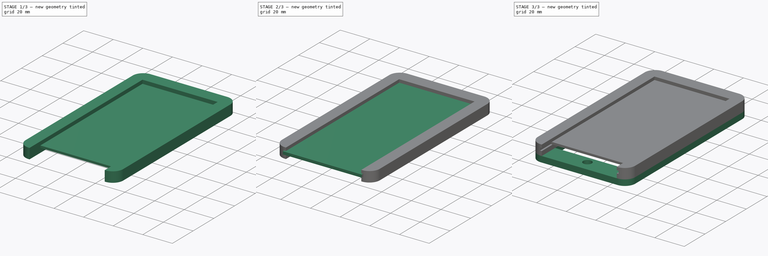
[diagram: build sequence overview — one tinted view per stage of 3, left to right]
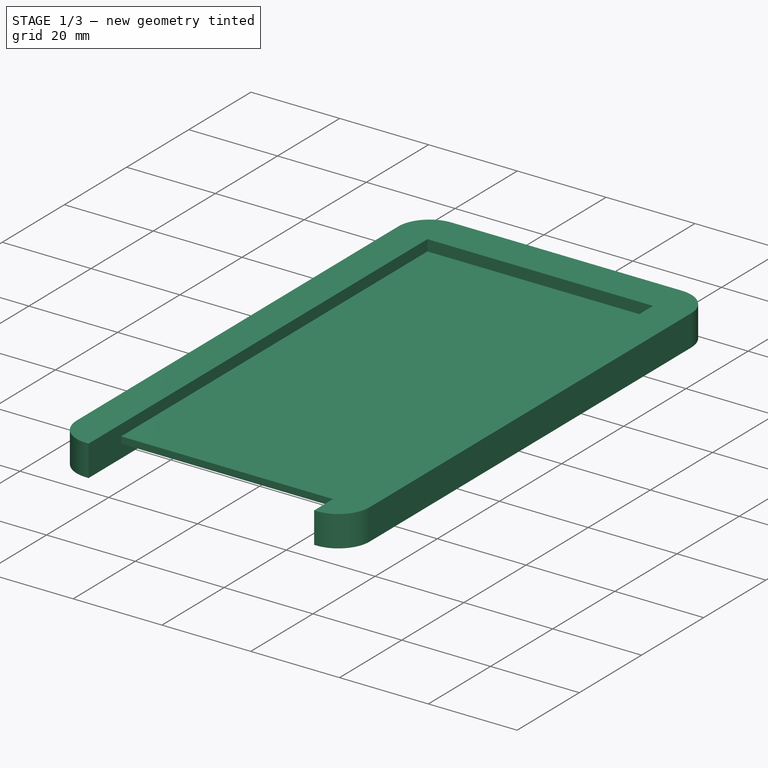
[diagram: stage 1 of 3 — iso view after this stage's code; geometry added in this stage tinted green]
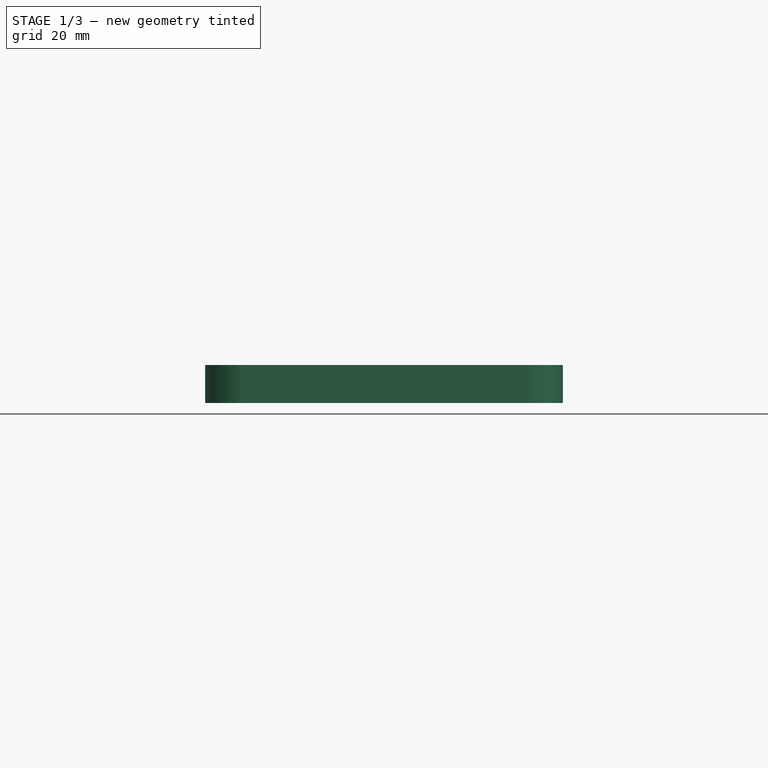
[diagram: stage 1 of 3 — front view after this stage's code; geometry added in this stage tinted green]
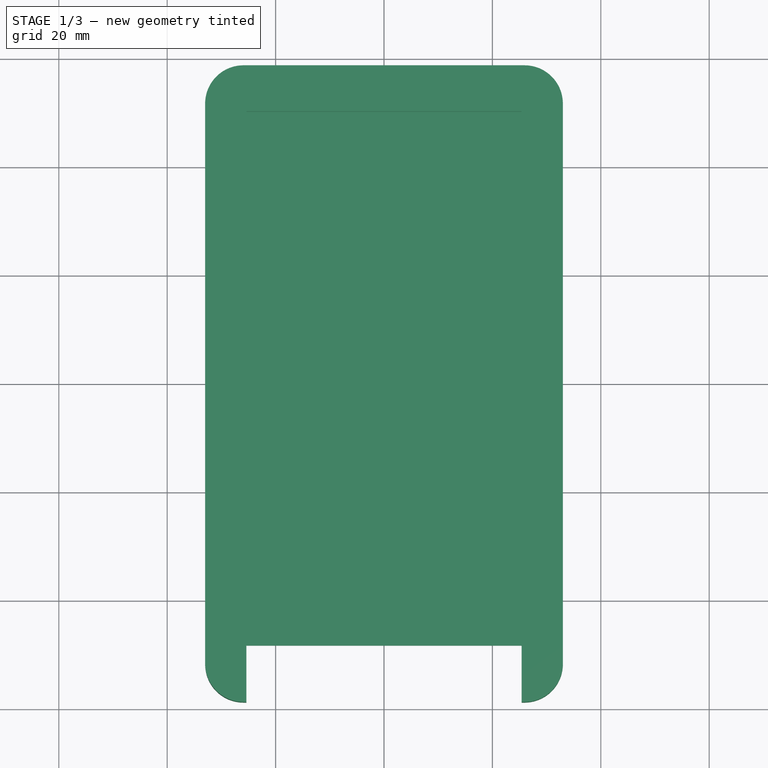
[diagram: stage 1 of 3 — top view after this stage's code; geometry added in this stage tinted green]
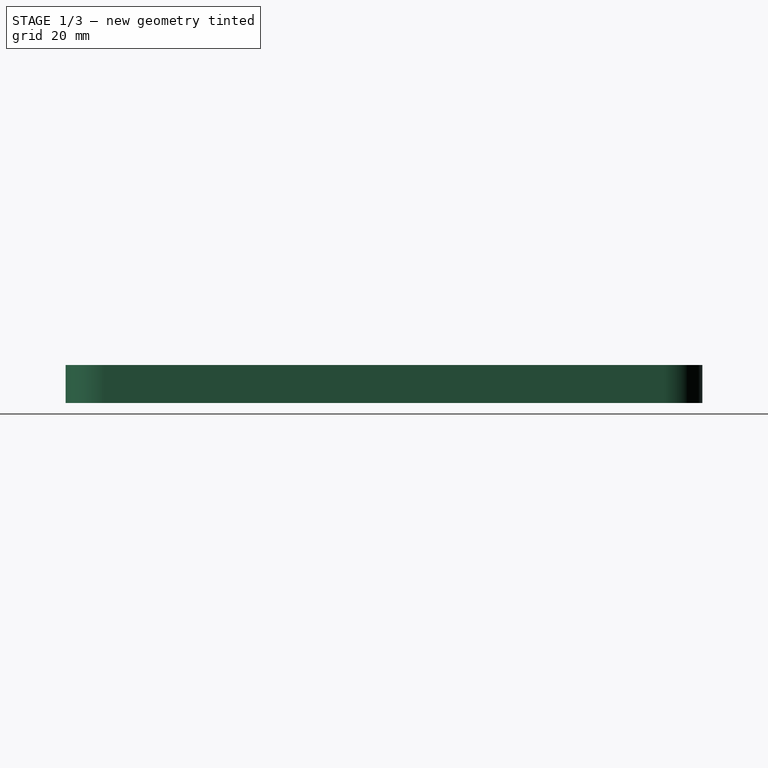
[diagram: stage 1 of 3 — right view after this stage's code; geometry added in this stage tinted green]
FCSTD DOCUMENT  (FreeCAD 0.15R4671 (Git))
Label: arduino_mount2
License: All rights reserved
LicenseURL: http://fr.wikipedia.org/wiki/<copyright redacted>
objects: Sketcher::SketchObject×4, PartDesign::Pad×4, Part::Cut×1
note: 13 computed .brp shape members not serialized (recipe doc carries the construction recipe); baked Part::Feature solids carry a one-line shape summary decoded from their .brp

FEATURE [Sketcher::SketchObject] Sketch002
  Placement = pos=(0,0,4) rot=(0,0,1;0rad)
  sketch-geometry (12):
    g0: LineSegment StartX=-25.9289 StartY=58.75 StartZ=0 EndX=25.9289 EndY=58.75 EndZ=0
    g1: LineSegment StartX=33 StartY=51.6789 StartZ=0 EndX=33 EndY=-51.6789 EndZ=0
    g2: LineSegment StartX=-33 StartY=-51.6789 StartZ=0 EndX=-33 EndY=51.6789 EndZ=0
    g3: ArcOfCircle CenterX=-25.9289 CenterY=51.6789 CenterZ=0 NormalX=0 NormalY=0 NormalZ=1 Radius=7.07107 StartAngle=1.5708 EndAngle=3.14159
    g4: ArcOfCircle CenterX=25.9289 CenterY=51.6789 CenterZ=0 NormalX=0 NormalY=0 NormalZ=1 Radius=7.07107 StartAngle=0 EndAngle=1.5708
    g5: ArcOfCircle CenterX=25.9289 CenterY=-51.6789 CenterZ=0 NormalX=0 NormalY=0 NormalZ=1 Radius=7.07107 StartAngle=4.71239 EndAngle=6.28319
    g6: ArcOfCircle CenterX=-25.9289 CenterY=-51.6789 CenterZ=0 NormalX=0 NormalY=0 NormalZ=1 Radius=7.07107 StartAngle=3.14159 EndAngle=4.71239
    g7: LineSegment StartX=-25.4 StartY=50.25 StartZ=0 EndX=25.4 EndY=50.25 EndZ=0
    g8: LineSegment StartX=-25.4 StartY=50.25 StartZ=0 EndX=-25.4 EndY=-58.75 EndZ=0
    g9: LineSegment StartX=-25.4 StartY=-58.75 StartZ=0 EndX=-25.9289 EndY=-58.75 EndZ=0
    g10: LineSegment StartX=25.4 StartY=50.25 StartZ=0 EndX=25.4 EndY=-58.75 EndZ=0
    g11: LineSegment StartX=25.4 StartY=-58.75 StartZ=0 EndX=25.9289 EndY=-58.75 EndZ=0
  constraints (34):
    c: Horizontal(g0)
    c: Vertical(g1)
    c: Vertical(g2)
    c: Tangent(g0,g3) = 1.5708
    c: Tangent(g2,g3) = 1.5708
    c: Tangent(g0,g4) = 1.5708
    c: Tangent(g1,g4) = 1.5708
    c: Tangent(g1,g5) = 1.5708
    c: Tangent(g2,g6) = 1.5708
    c: Distance(g0,g2) = 10
    c: Distance(g0,g1) = 10
    c: Symmetric(g0,g0,g-2)
    c: Symmetric(g1,g1,g-1)
    c: DistanceX(g1,g2) = -66
    c: Horizontal(g7)
    c: DistanceX(g7) = 50.8
    c: Symmetric(g7,g7,g-2)
    c: DistanceY(g0,g5) = -117.5
    c: Coincident(g7,g8)
    c: Vertical(g8)
    c: Coincident(g8,g9)
    c: Coincident(g9,g6)
    c: Horizontal(g9)
    c: Tangent(g9,g6)
    c: DistanceY(g6,g0) = 117.5
    c: Coincident(g7,g10)
    c: Vertical(g10)
    c: Coincident(g10,g11)
    c: Coincident(g11,g5)
    c: Horizontal(g11)
    c: Distance(g6,g2) = 10
    c: Distance(g5,g1) = 10
    c: DistanceY(g10) = -109
    c: DistanceY(g-1,g7) = 50.25
FEATURE [PartDesign::Pad] Pad002
  Length = 7
  Length2 = 100
  Placement = pos=(0,0,4) rot=(0,0,1;0rad)
  Sketch = -> Sketch002
  Type = 0
FEATURE [Sketcher::SketchObject] Sketch004
  Placement = pos=(0,0,7) rot=(0,0,1;0rad)
  sketch-geometry (4):
    g0: LineSegment StartX=-26.5 StartY=52.7 StartZ=0 EndX=26.5 EndY=52.7 EndZ=0
    g1: LineSegment StartX=26.5 StartY=52.7 StartZ=0 EndX=26.5 EndY=-48.3 EndZ=0
    g2: LineSegment StartX=26.5 StartY=-48.3 StartZ=0 EndX=-26.5 EndY=-48.3 EndZ=0
    g3: LineSegment StartX=-26.5 StartY=-48.3 StartZ=0 EndX=-26.5 EndY=52.7 EndZ=0
  constraints (12):
    c: Coincident(g0,g1)
    c: Coincident(g1,g2)
    c: Coincident(g2,g3)
    c: Coincident(g3,g0)
    c: Horizontal(g0)
    c: Horizontal(g2)
    c: Vertical(g1)
    c: Vertical(g3)
    c: DistanceX(g0) = 53
    c: Symmetric(g0,g0,g-2)
    c: DistanceY(g1) = -101
    c: DistanceY(g-1,g2) = -48.3
FEATURE [PartDesign::Pad] Pad004
  Length = 1.5
  Length2 = 100
  Placement = pos=(0,0,7) rot=(0,0,1;0rad)
  Sketch = -> Sketch004
  Type = 0
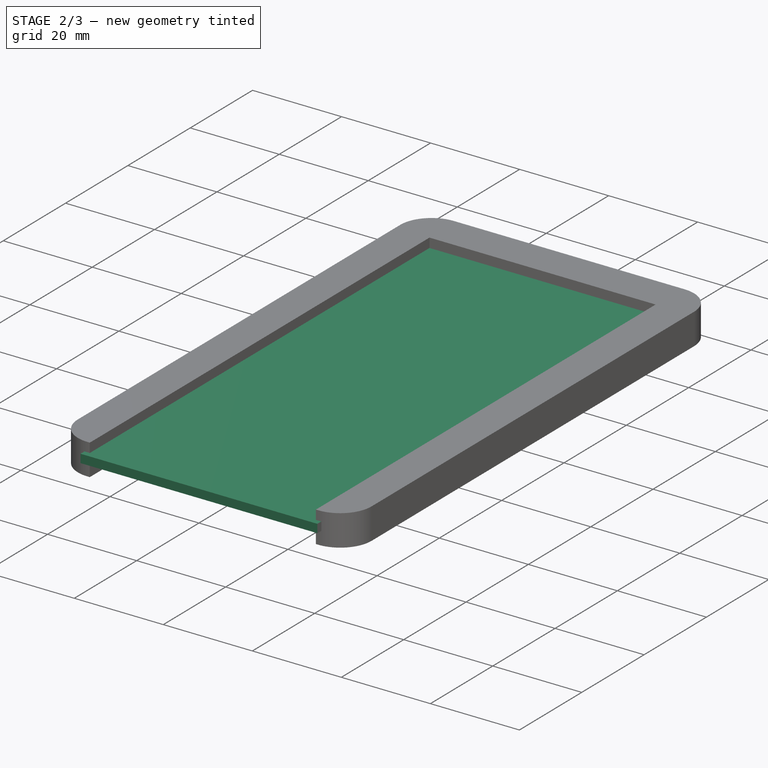
[diagram: stage 2 of 3 — iso view after this stage's code; geometry added in this stage tinted green]
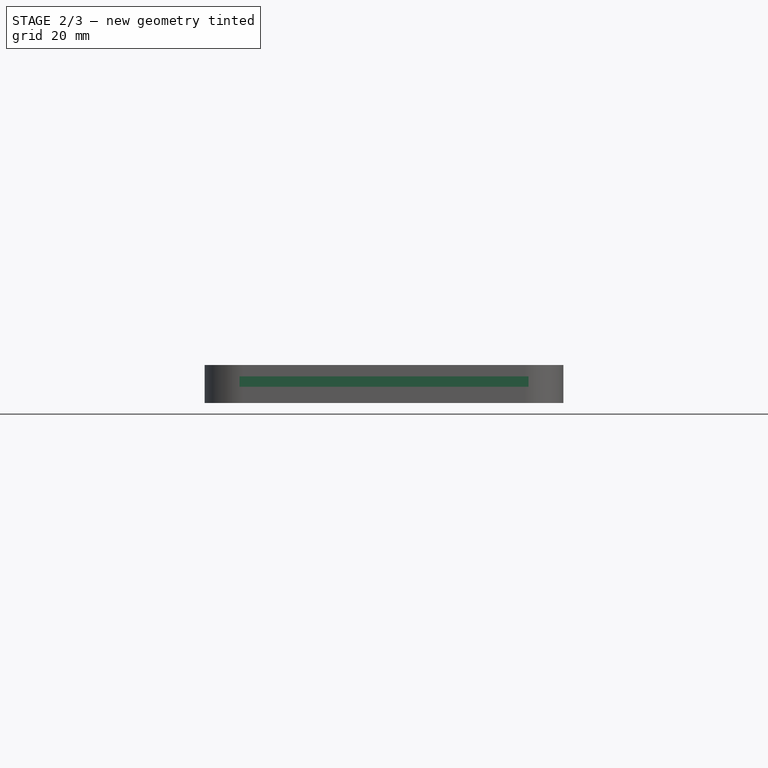
[diagram: stage 2 of 3 — front view after this stage's code; geometry added in this stage tinted green]
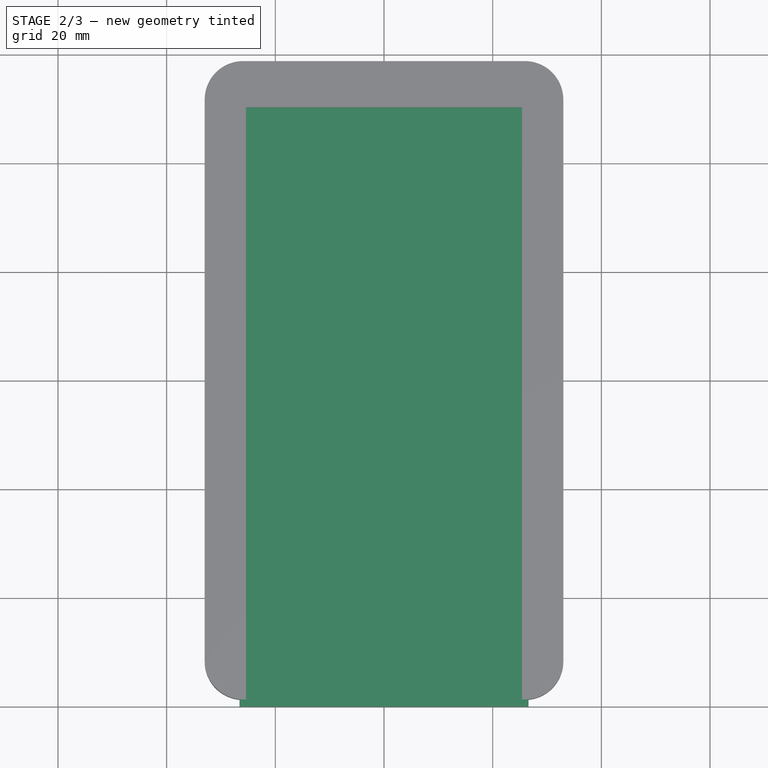
[diagram: stage 2 of 3 — top view after this stage's code; geometry added in this stage tinted green]
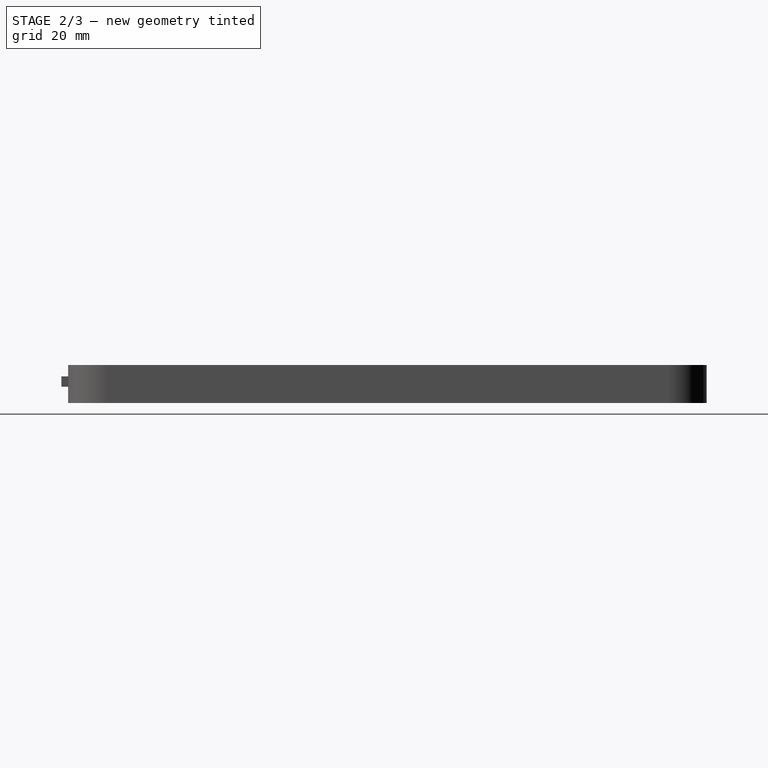
[diagram: stage 2 of 3 — right view after this stage's code; geometry added in this stage tinted green]
FEATURE [Sketcher::SketchObject] Sketch
  Placement = pos=(0,0,7) rot=(0,0,1;0rad)
  sketch-geometry (4):
    g0: LineSegment StartX=-26.6 StartY=54 StartZ=0 EndX=26.6 EndY=54 EndZ=0
    g1: LineSegment StartX=26.6 StartY=54 StartZ=0 EndX=26.6 EndY=-60 EndZ=0
    g2: LineSegment StartX=26.6 StartY=-60 StartZ=0 EndX=-26.6 EndY=-60 EndZ=0
    g3: LineSegment StartX=-26.6 StartY=-60 StartZ=0 EndX=-26.6 EndY=54 EndZ=0
  constraints (12):
    c: Coincident(g0,g1)
    c: Coincident(g1,g2)
    c: Coincident(g2,g3)
    c: Coincident(g3,g0)
    c: Horizontal(g0)
    c: Horizontal(g2)
    c: Vertical(g1)
    c: Vertical(g3)
    c: DistanceX(g0) = 53.2
    c: Symmetric(g0,g0,g-2)
    c: DistanceY(g1) = -114
    c: DistanceY(g-1,g0) = 54
FEATURE [PartDesign::Pad] Pad
  Length = 1.9
  Length2 = 100
  Placement = pos=(0,0,7) rot=(0,0,1;0rad)
  Sketch = -> Sketch
  Type = 0
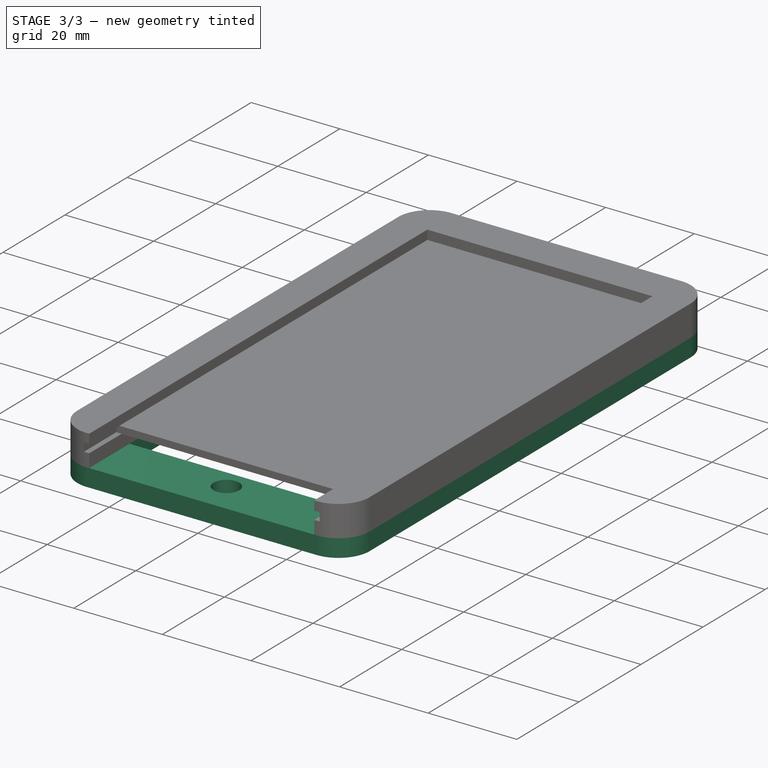
[diagram: stage 3 of 3 — iso view after this stage's code; geometry added in this stage tinted green]
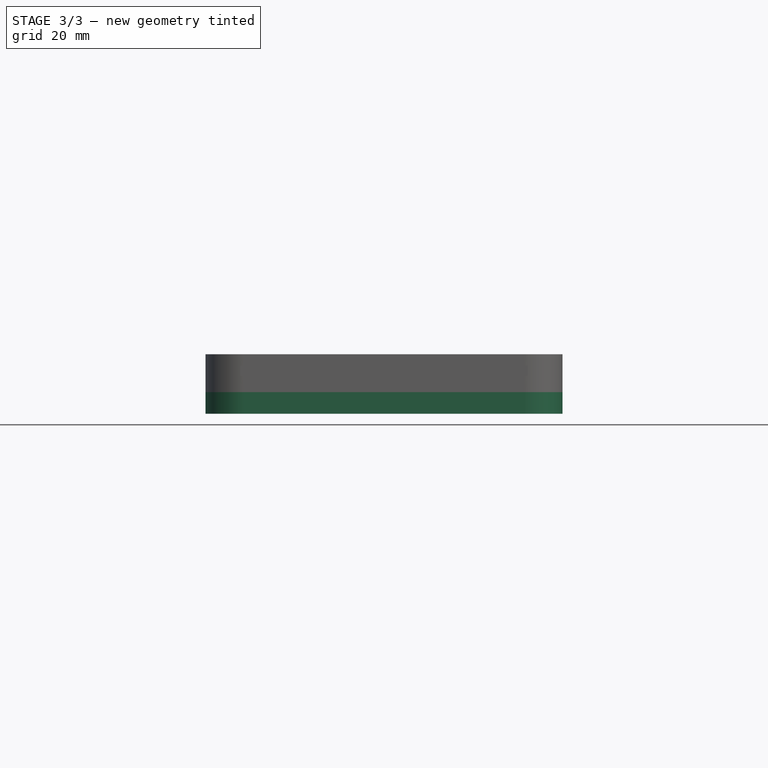
[diagram: stage 3 of 3 — front view after this stage's code; geometry added in this stage tinted green]
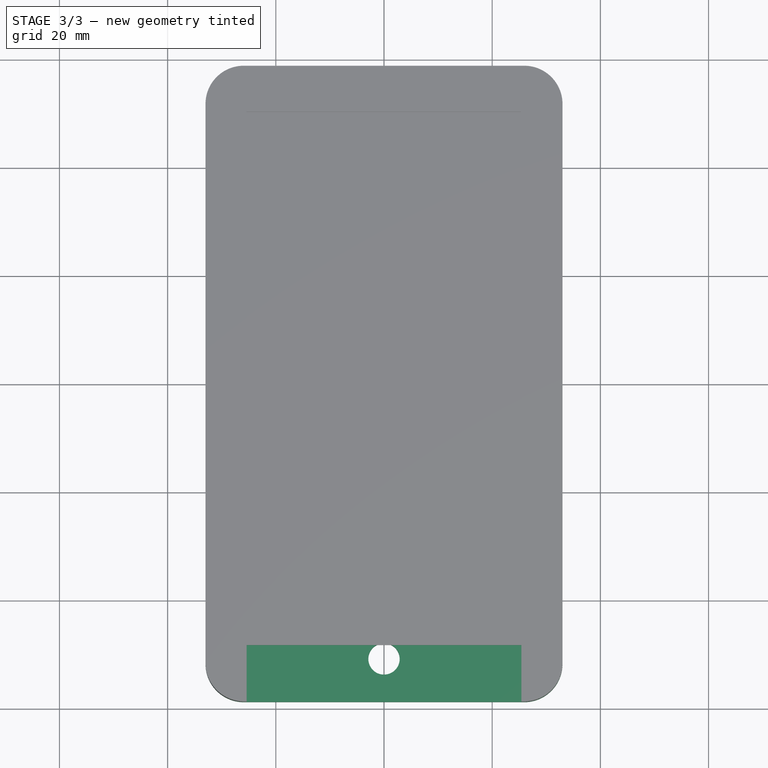
[diagram: stage 3 of 3 — top view after this stage's code; geometry added in this stage tinted green]
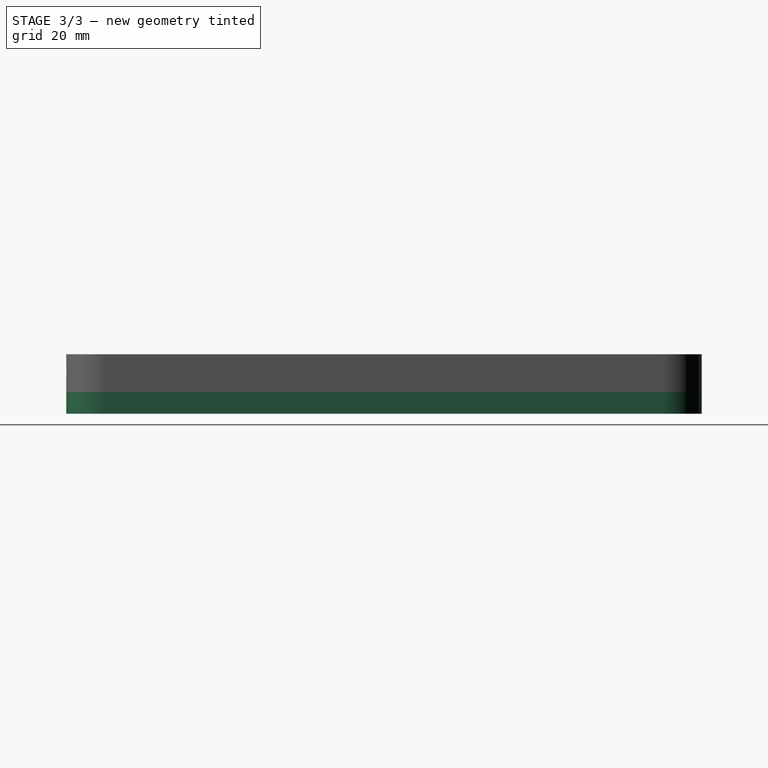
[diagram: stage 3 of 3 — right view after this stage's code; geometry added in this stage tinted green]
FEATURE [Sketcher::SketchObject] Sketch001
  sketch-geometry (13):
    g0: LineSegment StartX=-25.9289 StartY=58.75 StartZ=0 EndX=25.9289 EndY=58.75 EndZ=0
    g1: LineSegment StartX=33 StartY=51.6789 StartZ=0 EndX=33 EndY=-51.6789 EndZ=0
    g2: LineSegment StartX=25.9289 StartY=-58.75 StartZ=0 EndX=-25.9289 EndY=-58.75 EndZ=0
    g3: LineSegment StartX=-33 StartY=-51.6789 StartZ=0 EndX=-33 EndY=51.6789 EndZ=0
    g4: ArcOfCircle CenterX=-25.9289 CenterY=51.6789 CenterZ=0 NormalX=0 NormalY=0 NormalZ=1 Radius=7.07107 StartAngle=1.5708 EndAngle=3.14159
    g5: ArcOfCircle CenterX=25.9289 CenterY=51.6789 CenterZ=0 NormalX=0 NormalY=0 NormalZ=1 Radius=7.07107 StartAngle=0 EndAngle=1.5708
    g6: ArcOfCircle CenterX=25.9289 CenterY=-51.6789 CenterZ=0 NormalX=0 NormalY=0 NormalZ=1 Radius=7.07107 StartAngle=4.71239 EndAngle=6.28319
    g7: ArcOfCircle CenterX=-25.9289 CenterY=-51.6789 CenterZ=0 NormalX=0 NormalY=0 NormalZ=1 Radius=7.07107 StartAngle=3.14159 EndAngle=4.71239
    g8: LineSegment StartX=-25.4 StartY=50.25 StartZ=0 EndX=25.4 EndY=50.25 EndZ=0
    g9: LineSegment StartX=25.4 StartY=50.25 StartZ=0 EndX=25.4 EndY=-45.75 EndZ=0
    g10: LineSegment StartX=25.4 StartY=-45.75 StartZ=0 EndX=-25.4 EndY=-45.75 EndZ=0
    g11: LineSegment StartX=-25.4 StartY=-45.75 StartZ=0 EndX=-25.4 EndY=50.25 EndZ=0
    g12: Circle CenterX=0 CenterY=-50.8 CenterZ=0 NormalX=0 NormalY=0 NormalZ=1 Radius=2.9
  constraints (35):
    c: Horizontal(g0)
    c: Horizontal(g2)
    c: Vertical(g1)
    c: Vertical(g3)
    c: Tangent(g0,g4) = 1.5708
    c: Tangent(g3,g4) = 1.5708
    c: Tangent(g0,g5) = 1.5708
    c: Tangent(g1,g5) = 1.5708
    c: Tangent(g1,g6) = 1.5708
    c: Tangent(g2,g6) = 1.5708
    c: Tangent(g3,g7) = 1.5708
    c: Tangent(g2,g7) = 1.5708
    c: Distance(g3,g2) = 10
    c: Distance(g0,g3) = 10
    c: Distance(g0,g1) = 10
    c: Distance(g1,g2) = 10
    c: Symmetric(g0,g0,g-2)
    c: Symmetric(g1,g1,g-1)
    c: DistanceX(g1,g3) = -66
    c: DistanceY(g0,g2) = -117.5
    c: Coincident(g8,g9)
    c: Coincident(g9,g10)
    c: Coincident(g10,g11)
    c: Coincident(g11,g8)
    c: Horizontal(g8)
    c: Horizontal(g10)
    c: Vertical(g9)
    c: Vertical(g11)
    c: DistanceX(g8) = 50.8
    c: Symmetric(g8,g8,g-2)
    c: DistanceY(g-1,g8) = 50.25
    c: Radius(g12) = 2.9
    c: DistanceY(g-1,g12) = -50.8
    c: DistanceY(g9) = -96
    c: PointOnObject(g12,g-2)
FEATURE [PartDesign::Pad] Pad001
  Length = 4
  Length2 = 100
  Sketch = -> Sketch001
  Type = 0
FEATURE [Part::Cut] Cut
  Base = -> Pad002
  Tool = -> Pad
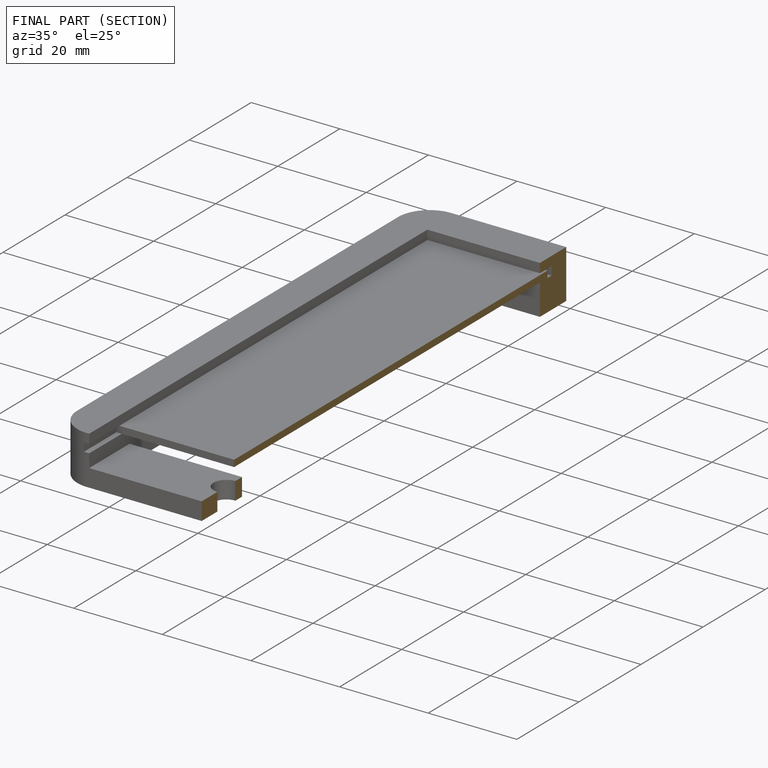
[diagram: finished part — half-section view (interior)]
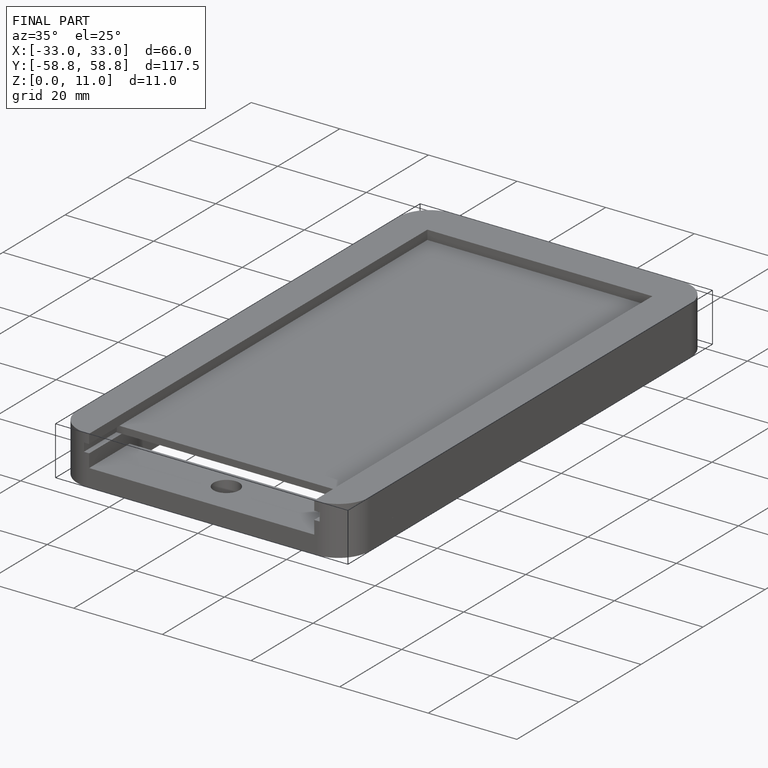
[diagram: finished part — iso view with bounding-box wireframe]
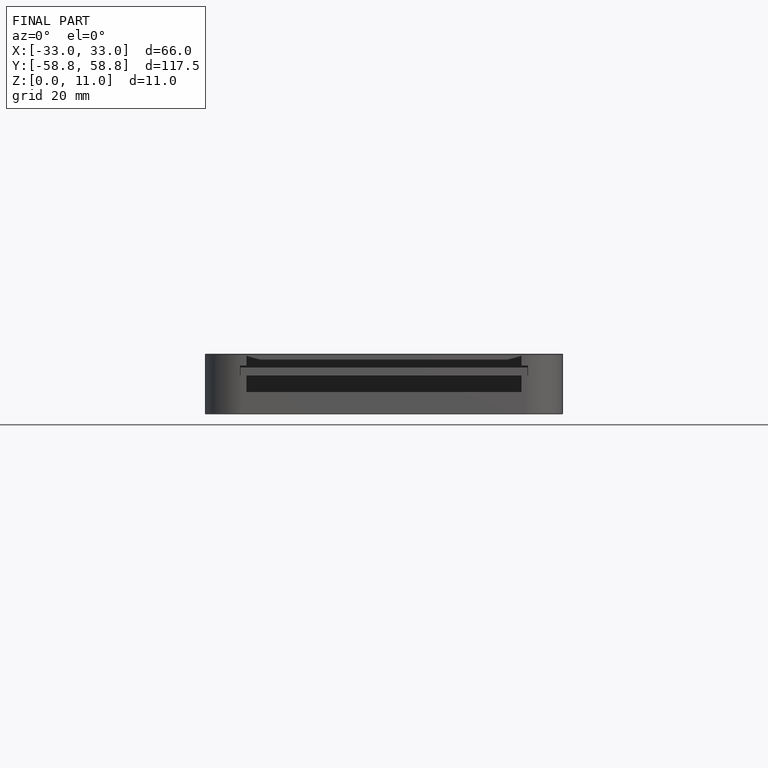
[diagram: finished part — front view with bounding-box wireframe]
